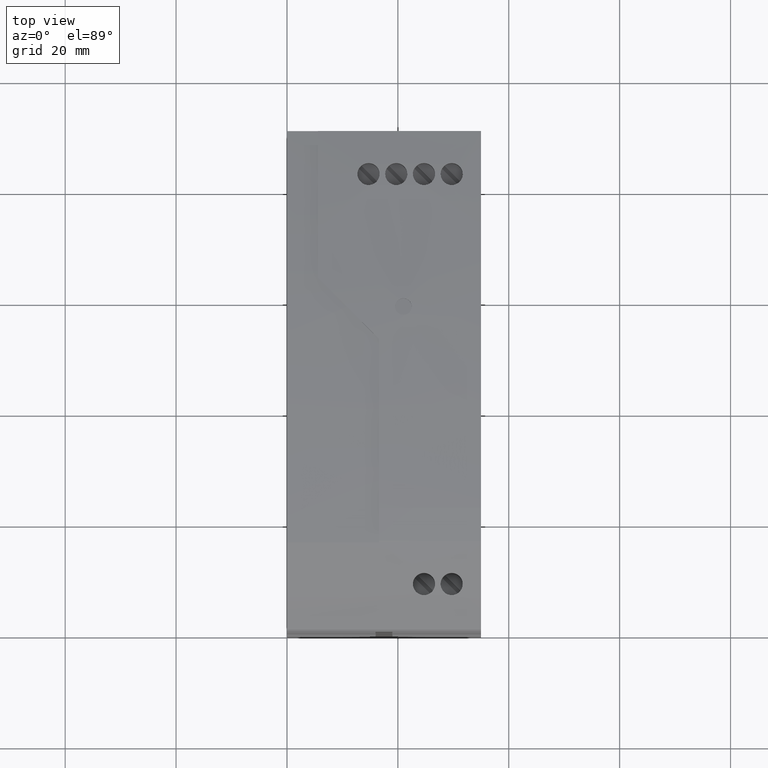
[diagram: clean part render]
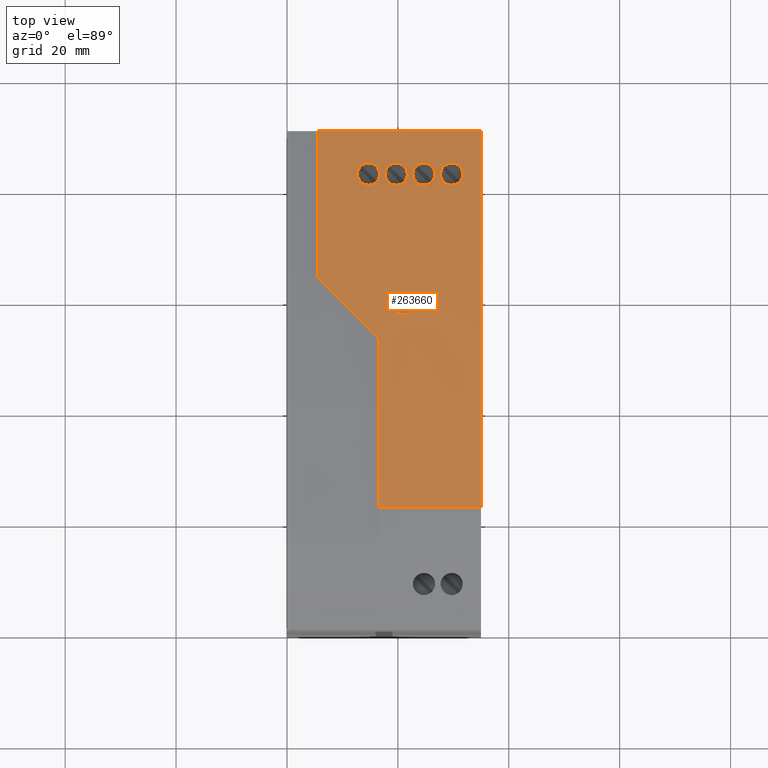
[diagram: same view with one face highlighted and labeled with its STEP entity id]
A machine part, top view. The second image highlights one B-rep face of the part: STEP entity #263660.
In plain terms, the highlighted cylindrical surface (partial cylindrical patch) has radius 350 mm, axis along (1, 0, 0).
Its self-contained STEP definition (entity closure, byte-faithful):
#33890=CARTESIAN_POINT('',(-23.0409203779481,89.8990722762113,13.5));
#33900=VERTEX_POINT('',#33890);
#33930=CARTESIAN_POINT('',(-33.8174223565983,-259.934984106395,13.5));
#33940=DIRECTION('',(0.,0.,1.));
#33950=DIRECTION('',(0.,1.,0.));
#33960=AXIS2_PLACEMENT_3D('',#33930,#33940,#33950);
#33970=CIRCLE('',#33960,350.000000000006);
#33980=CARTESIAN_POINT('',(44.998476392647,81.0753589982581,13.5));
#33990=VERTEX_POINT('',#33980);
#34000=EDGE_CURVE('',#33990,#33900,#33970,.T.);
#149330=CARTESIAN_POINT('',(13.1984817606206,86.6921034492257,1.));
#149340=CARTESIAN_POINT('',(13.0055555978401,86.7181688267425,
0.999982713787796));
#149350=CARTESIAN_POINT('',(12.6154612248136,86.7708727055403,
0.924391030368163));
#149360=CARTESIAN_POINT('',(12.1127511947706,86.8387915742188,
0.59119885713026));
#149370=CARTESIAN_POINT('',(11.7787944546882,86.8839109524259,
0.0906647365378639));
#149380=CARTESIAN_POINT('',(11.6588543533701,86.9001155147061,
-0.500019000456801));
#149390=CARTESIAN_POINT('',(11.7787704303386,86.8839141982466,
-1.09069003289234));
#149400=CARTESIAN_POINT('',(12.1127775662568,86.8387880112871,
-1.59123595549545));
#149410=CARTESIAN_POINT('',(12.6154786035389,86.7708703575796,
-1.9243891701172));
#149420=CARTESIAN_POINT('',(13.0055621510402,86.7181679413694,
-1.99998778301405));
#149430=CARTESIAN_POINT('',(13.1984826061552,86.6921033349893,
-1.99999999005424));
#149440=B_SPLINE_CURVE_WITH_KNOTS('',3,(#149330,#149340,#149350,#149360,
#149370,#149380,#149390,#149400,#149410,#149420,#149430),.UNSPECIFIED.,
.F.,.F.,(4,1,1,1,1,1,1,1,4),(0.,0.124601525288921,0.250020484171647,
0.375081460448419,0.500001300574072,0.624919263761973,0.74998345534349,
0.87540031799334,1.),.UNSPECIFIED.);
#149450=DIRECTION('',(0.133889013118048,0.990996333074081,0.));
#149460=VECTOR('',#149450,1.);
#149470=SURFACE_OF_LINEAR_EXTRUSION('',#149440,#149460);
#149520=CARTESIAN_POINT('',(13.2251086358911,86.8891792355285,
-1.99999999005424));
#149530=VERTEX_POINT('',#149520);
#149610=CARTESIAN_POINT('',(13.2251077904162,86.889179350207,1.));
#149620=VERTEX_POINT('',#149610);
#149650=CARTESIAN_POINT('',(-33.8174223565983,-259.934984106395,13.5));
#149660=DIRECTION('',(0.,0.,1.));
#149670=DIRECTION('',(0.,1.,0.));
#149680=AXIS2_PLACEMENT_3D('',#149650,#149660,#149670);
#149690=CYLINDRICAL_SURFACE('',#149680,350.000000000006);
#149700=CARTESIAN_POINT('',(13.2251077904162,86.889179350207,1.));
#149710=CARTESIAN_POINT('',(12.9994849806739,86.9197823731434,
0.999979782735081));
#149720=CARTESIAN_POINT('',(12.7738394898692,86.9501505351982,
0.948529304902941));
#149730=CARTESIAN_POINT('',(12.5699462445855,86.9774141071345,
0.849268912616509));
#149740=CARTESIAN_POINT('',(12.364352396805,87.0049050750222,
0.749180623992813));
#149750=CARTESIAN_POINT('',(12.1833022051968,87.0289237237714,
0.602926657652268));
#149760=CARTESIAN_POINT('',(12.0431106938747,87.047452781023,
0.42273368178693));
#149770=CARTESIAN_POINT('',(11.8389385588227,87.0744381323034,
0.160304207585181));
#149780=CARTESIAN_POINT('',(11.7251185274894,87.0893334418509,
-0.166774336666834));
#149790=CARTESIAN_POINT('',(11.7251090276306,87.0893346885867,
-0.500006183820192));
#149800=CARTESIAN_POINT('',(11.7250995273647,87.0893359353758,
-0.83325231306236));
#149810=CARTESIAN_POINT('',(11.838915779487,87.0744411383523,
-1.16031030334544));
#149820=CARTESIAN_POINT('',(12.043102866026,87.0474538156266,
-1.42274395292638));
#149830=CARTESIAN_POINT('',(12.183300714116,87.028923924065,
-1.60293474540652));
#149840=CARTESIAN_POINT('',(12.364349935068,87.0049054045516,
-1.74918296978898));
#149850=CARTESIAN_POINT('',(12.5699468388128,86.9774140276774,
-1.84926995077305));
#149860=CARTESIAN_POINT('',(12.7738398174735,86.9501504910371,
-1.9485274410674));
#149870=CARTESIAN_POINT('',(12.9994866830455,86.9197821427972,
-1.99998571281833));
#149880=CARTESIAN_POINT('',(13.2251086358911,86.8891792355285,
-1.99999999005424));
#149890=B_SPLINE_CURVE_WITH_KNOTS('',3,(#149700,#149710,#149720,#149730,
#149740,#149750,#149760,#149770,#149780,#149790,#149800,#149810,#149820,
#149830,#149840,#149850,#149860,#149870,#149880),.UNSPECIFIED.,.F.,.F.,(
4,3,3,3,3,3,4),(0.,0.683784518436675,1.37118459360683,2.36633691669822,
3.36148932592984,4.04888981220168,4.73267473464276),.UNSPECIFIED.);
#149900=SURFACE_CURVE('',#149890,(#149690,#149470),.CURVE_3D.);
#149910=EDGE_CURVE('',#149620,#149530,#149900,.T.);
#153800=CARTESIAN_POINT('',(13.1984817625892,86.6921034489597,
0.999999999999998));
#153810=CARTESIAN_POINT('',(13.3913884849968,86.6660406979434,
0.999970963924609));
#153820=CARTESIAN_POINT('',(13.7814001998191,86.6133479867201,
0.924155828797026));
#153830=CARTESIAN_POINT('',(14.2843524047987,86.5453963988859,
0.591676786056457));
#153840=CARTESIAN_POINT('',(14.6189250564467,86.5001938076649,
0.0909575630878443));
#153850=CARTESIAN_POINT('',(14.7389975518286,86.4839713582241,
-0.500179202060517));
#153860=CARTESIAN_POINT('',(14.6188661041923,86.5002017724362,
-1.09127931154959));
#153870=CARTESIAN_POINT('',(14.2843255024885,86.5454000335348,
-1.59191213507057));
#153880=CARTESIAN_POINT('',(13.7814075523009,86.6133469933596,
-1.92430609882742));
#153890=CARTESIAN_POINT('',(13.3913969134836,86.6660395592088,
-1.99997142864564));
#153900=CARTESIAN_POINT('',(13.1984826141505,86.6921033339091,-2.));
#153910=B_SPLINE_CURVE_WITH_KNOTS('',3,(#153800,#153810,#153820,#153830,
#153840,#153850,#153860,#153870,#153880,#153890,#153900),.UNSPECIFIED.,
.F.,.F.,(4,1,1,1,1,1,1,1,4),(0.,0.124580735199533,0.2499639478125,
0.375047362656134,0.500000013310294,0.624952655613596,0.750034170979229,
0.875416818226335,1.),.UNSPECIFIED.);
#153920=DIRECTION('',(0.133889013118048,0.990996333074081,0.));
#153930=VECTOR('',#153920,1.);
#153940=SURFACE_OF_LINEAR_EXTRUSION('',#153910,#153930);
#153980=CARTESIAN_POINT('',(13.2251077923846,86.88917934994,
0.999999999999998));
#153990=CARTESIAN_POINT('',(13.4508092628632,86.8585656576186,
0.999966025300295));
#154000=CARTESIAN_POINT('',(13.6764806633038,86.8277179364568,
0.948321683997539));
#154010=CARTESIAN_POINT('',(13.8803569800884,86.7996721458367,
0.849117271774597));
#154020=CARTESIAN_POINT('',(14.0859960689192,86.7713838634133,
0.7490551102678));
#154030=CARTESIAN_POINT('',(14.2670163062318,86.7462914177236,
0.602961095943462));
#154040=CARTESIAN_POINT('',(14.4072307221891,86.7267859742344,
0.422695102309848));
#154050=CARTESIAN_POINT('',(14.611341562577,86.6983918006714,
0.160280976039718));
#154060=CARTESIAN_POINT('',(14.725051822759,86.6824248628474,
-0.166774938922335));
#154070=CARTESIAN_POINT('',(14.7250589325744,86.6824238671441,
-0.500069294149769));
#154080=CARTESIAN_POINT('',(14.725066042118,86.6824228714789,
-0.833350905124435));
#154090=CARTESIAN_POINT('',(14.6113725600781,86.6983874598514,
-1.16043441256488));
#154100=CARTESIAN_POINT('',(14.4072785555143,86.7267793200634,
-1.4228497492662));
#154110=CARTESIAN_POINT('',(14.2670720962536,86.7462836764048,
-1.60312121433562));
#154120=CARTESIAN_POINT('',(14.0860473027592,86.7713767948303,
-1.74922088646316));
#154130=CARTESIAN_POINT('',(13.8803912524074,86.7996674312399,
-1.84924998639802));
#154140=CARTESIAN_POINT('',(13.6764909510412,86.8277165417809,
-1.9484251071261));
#154150=CARTESIAN_POINT('',(13.450811471709,86.8585653574509,
-1.99996657017576));
#154160=CARTESIAN_POINT('',(13.2251086438858,86.8891792344441,-2.));
#154170=B_SPLINE_CURVE_WITH_KNOTS('',3,(#153980,#153990,#154000,#154010,
#154020,#154030,#154040,#154050,#154060,#154070,#154080,#154090,#154100,
#154110,#154120,#154130,#154140,#154150,#154160),.UNSPECIFIED.,.F.,.F.,(
4,3,3,3,3,3,4),(0.,0.684060528390621,1.37172166931321,2.36697046026307,
3.36221858739486,4.0498820158736,4.73394187113417),.UNSPECIFIED.);
#154180=SURFACE_CURVE('',#154170,(#149690,#153940),.CURVE_3D.);
#154190=EDGE_CURVE('',#149620,#149530,#154180,.T.);
#160460=CARTESIAN_POINT('',(-23.0409203779481,89.8990722762113,1.));
#160470=DIRECTION('',(0.,0.,-1.));
#160480=VECTOR('',#160470,1.);
#160490=LINE('',#160460,#160480);
#160500=CARTESIAN_POINT('',(-23.0409203779482,89.8990722762115,-4.9));
#160510=VERTEX_POINT('',#160500);
#160520=EDGE_CURVE('',#33900,#160510,#160490,.T.);
#260180=CARTESIAN_POINT('',(44.998476392647,81.0753589982581,-15.9));
#260190=VERTEX_POINT('',#260180);
#260310=CARTESIAN_POINT('',(44.998476392647,81.0753589982581,13.5));
#260320=DIRECTION('',(0.,0.,1.));
#260330=VECTOR('',#260320,1.);
#260340=LINE('',#260310,#260330);
#260350=EDGE_CURVE('',#260190,#33990,#260340,.T.);
#260470=CARTESIAN_POINT('',(-33.8174223565983,-259.934984106395,13.5));
#260480=DIRECTION('',(0.,0.,1.));
#260490=DIRECTION('',(0.,1.,0.));
#260500=AXIS2_PLACEMENT_3D('',#260470,#260480,#260490);
#260510=CYLINDRICAL_SURFACE('',#260500,350.000000000006);
#260520=CARTESIAN_POINT('',(37.1984763926329,80.1290722762114,3.2));
#260530=DIRECTION('',(0.,-1.,0.));
#260540=DIRECTION('',(0.,0.,-1.));
#260550=AXIS2_PLACEMENT_3D('',#260520,#260530,#260540);
#260560=CYLINDRICAL_SURFACE('',#260550,1.99999999999999);
#260570=CARTESIAN_POINT('',(35.9311956553943,83.044797054859,
4.74725548408272));
#260580=CARTESIAN_POINT('',(36.020505111017,83.0266350189395,
4.82040445910868));
#260590=CARTESIAN_POINT('',(36.1163725522379,83.0071025878325,
4.88591993635139));
#260600=CARTESIAN_POINT('',(36.2167531583835,82.9866020615529,
4.94247510493988));
#260610=CARTESIAN_POINT('',(36.3172187516943,82.9660841785179,
4.99907815591965));
#260620=CARTESIAN_POINT('',(36.4216153554368,82.9447172217389,
5.04647158265835));
#260630=CARTESIAN_POINT('',(36.5289314908513,82.9226984681303,
5.08459800076789));
#260640=CARTESIAN_POINT('',(36.6364406680203,82.900640106882,
5.1227930012077));
#260650=CARTESIAN_POINT('',(36.7472511308003,82.8778510192482,
5.15174421068449));
#260660=CARTESIAN_POINT('',(36.8592254700604,82.8547640658498,
5.17101720224195));
#260670=CARTESIAN_POINT('',(36.9713202013282,82.8316522899368,
5.19031091563767));
#260680=CARTESIAN_POINT('',(37.0849014576514,82.8081761913233,
5.19999999999999));
#260690=CARTESIAN_POINT('',(37.1984763926329,82.7846420092442,
5.19999999999999));
#260700=B_SPLINE_CURVE_WITH_KNOTS('',3,(#260570,#260580,#260590,#260600,
#260610,#260620,#260630,#260640,#260650,#260660,#260670,#260680,#260690)
,.UNSPECIFIED.,.F.,.F.,(4,3,3,3,4),(0.,0.351203730232977,
0.700531232207713,1.04904605481684,1.3970827915383),.UNSPECIFIED.);
#260710=SURFACE_CURVE('',#260700,(#260510,#260560),.CURVE_3D.);
#260720=CARTESIAN_POINT('',(35.9311956553943,83.044797054859,
4.74725548408271));
#260730=VERTEX_POINT('',#260720);
#260740=CARTESIAN_POINT('',(37.1984763926329,82.7846420092442,
5.19999999999999));
#260750=VERTEX_POINT('',#260740);
#260760=EDGE_CURVE('',#260730,#260750,#260710,.T.);
#260770=ORIENTED_EDGE('',*,*,#260760,.F.);
#260780=CARTESIAN_POINT('',(37.1984763926329,82.7846420092442,
5.19999999999999));
#260790=CARTESIAN_POINT('',(37.4961463098964,82.7229609875161,
5.19999999999999));
#260800=CARTESIAN_POINT('',(37.7936485234423,82.6608865131165,
5.13270830731074));
#260810=CARTESIAN_POINT('',(38.0635206162501,82.6042545763268,
5.00324665289774));
#260820=CARTESIAN_POINT('',(38.335583336425,82.5471629422438,
4.87273412197432));
#260830=CARTESIAN_POINT('',(38.5754650410516,82.4964790795992,
4.68176677262291));
#260840=CARTESIAN_POINT('',(38.7639561588967,82.4565220569369,
4.44469799606921));
#260850=CARTESIAN_POINT('',(39.0434318315744,82.3972778022771,
4.09319625659371));
#260860=CARTESIAN_POINT('',(39.1981441028872,82.3641935945163,
3.65343345640217));
#260870=CARTESIAN_POINT('',(39.19847585385,82.3641228286451,
3.20146803653028));
#260880=CARTESIAN_POINT('',(39.1988084354584,82.3640518855886,
2.74837097534132));
#260890=CARTESIAN_POINT('',(39.044384919327,82.3970747382394,
2.30870044915064));
#260900=CARTESIAN_POINT('',(38.7651564820738,82.4562676059297,
1.95681316876768));
#260910=CARTESIAN_POINT('',(38.5776636390746,82.4960136975445,
1.72053226821447));
#260920=CARTESIAN_POINT('',(38.3363412055794,82.547002205152,
1.52801029798879));
#260930=CARTESIAN_POINT('',(38.0655730697694,82.6038238680261,
1.3977393771991));
#260940=CARTESIAN_POINT('',(37.7960228823833,82.6603899400622,
1.26805443105582));
#260950=CARTESIAN_POINT('',(37.4965129087698,82.7228850235313,
1.20000000000001));
#260960=CARTESIAN_POINT('',(37.1984763926329,82.7846420092442,
1.20000000000001));
#260970=B_SPLINE_CURVE_WITH_KNOTS('',3,(#260780,#260790,#260800,#260810,
#260820,#260830,#260840,#260850,#260860,#260870,#260880,#260890,#260900,
#260910,#260920,#260930,#260940,#260950,#260960),.UNSPECIFIED.,.F.,.F.,(
4,3,3,3,3,3,4),(0.,0.912600569074767,1.82825693375222,3.1743871375938,
4.52150659964054,5.43679212056496,6.3517101585232),.UNSPECIFIED.);
#260980=SURFACE_CURVE('',#260970,(#260510,#260560),.CURVE_3D.);
#260990=CARTESIAN_POINT('',(37.1984763926329,82.7846420092442,
1.20000000000001));
#261000=VERTEX_POINT('',#260990);
#261010=EDGE_CURVE('',#260750,#261000,#260980,.T.);
#261020=ORIENTED_EDGE('',*,*,#261010,.F.);
#261030=CARTESIAN_POINT('',(37.1984763926329,82.7846420092442,
1.20000000000001));
#261040=CARTESIAN_POINT('',(36.7938362901332,82.8684886242591,
1.20000000000001));
#261050=CARTESIAN_POINT('',(36.3934566854708,82.9506384641315,
1.32396444427632));
#261060=CARTESIAN_POINT('',(36.057286766752,83.0191309366115,
1.55753653380598));
#261070=CARTESIAN_POINT('',(35.7208176640573,83.0876843659146,
1.79131649745685));
#261080=CARTESIAN_POINT('',(35.460841564701,83.1401432992659,
2.12657977655039));
#261090=CARTESIAN_POINT('',(35.3191341403167,83.168697826273,
2.51584161288547));
#261100=CARTESIAN_POINT('',(35.1774317526602,83.1972513383623,
2.90508961363008));
#261110=CARTESIAN_POINT('',(35.1599360983357,83.2007569559795,
3.33180789833944));
#261120=CARTESIAN_POINT('',(35.2707337166888,83.1784471235667,
3.73273649710124));
#261130=CARTESIAN_POINT('',(35.3810127590693,83.1562417098518,
4.13178859399334));
#261140=CARTESIAN_POINT('',(35.6146664253619,83.1091666695354,
4.4880019864415));
#261150=CARTESIAN_POINT('',(35.9311956553943,83.044797054859,
4.74725548408271));
#261160=B_SPLINE_CURVE_WITH_KNOTS('',3,(#261030,#261040,#261050,#261060,
#261070,#261080,#261090,#261100,#261110,#261120,#261130,#261140,#261150)
,.UNSPECIFIED.,.F.,.F.,(4,3,3,3,4),(0.,1.23699307380883,2.47542169574248
,3.71371680086393,4.9513414771357),.UNSPECIFIED.);
#261170=SURFACE_CURVE('',#261160,(#260510,#260560),.CURVE_3D.);
#261180=EDGE_CURVE('',#261000,#260730,#261170,.T.);
#261190=ORIENTED_EDGE('',*,*,#261180,.F.);
#261200=EDGE_LOOP('',(#261190,#261020,#260770));
#261210=FACE_BOUND('',#261200,.T.);
#261220=CARTESIAN_POINT('',(37.1984763926329,80.1290722762114,
8.20000000000001));
#261230=DIRECTION('',(0.,-1.,0.));
#261240=DIRECTION('',(0.,0.,-1.));
#261250=AXIS2_PLACEMENT_3D('',#261220,#261230,#261240);
#261260=CYLINDRICAL_SURFACE('',#261250,1.99999999999998);
#261270=CARTESIAN_POINT('',(38.2124243590828,82.5729737312588,
6.47607728672883));
#261280=CARTESIAN_POINT('',(38.1355887191296,82.5891323612745,
6.43088538787997));
#261290=CARTESIAN_POINT('',(38.0562937115018,82.6057811145165,
6.39115178067957));
#261300=CARTESIAN_POINT('',(37.9749963317338,82.6228192186552,
6.35690022403051));
#261310=CARTESIAN_POINT('',(37.8935260593613,82.639893557199,
6.32257582566311));
#261320=CARTESIAN_POINT('',(37.8094075858307,82.6574923309597,
6.29351994353811));
#261330=CARTESIAN_POINT('',(37.7236274002445,82.6754042353678,
6.27017710159601));
#261340=CARTESIAN_POINT('',(37.6378483907851,82.6933158941868,
6.24683457970615));
#261350=CARTESIAN_POINT('',(37.550458513784,82.7115300167772,
6.22922044766729));
#261360=CARTESIAN_POINT('',(37.4625588035147,82.7298146194421,
6.21751154347301));
#261370=CARTESIAN_POINT('',(37.3746394698394,82.7481033041021,
6.2058000252931));
#261380=CARTESIAN_POINT('',(37.2863394077403,82.7664356664811,
6.20000000000003));
#261390=CARTESIAN_POINT('',(37.1984763926329,82.7846420092441,
6.20000000000003));
#261400=B_SPLINE_CURVE_WITH_KNOTS('',3,(#261270,#261280,#261290,#261300,
#261310,#261320,#261330,#261340,#261350,#261360,#261370,#261380,#261390)
,.UNSPECIFIED.,.F.,.F.,(4,3,3,3,4),(0.,0.270489618847432,
0.541740849947555,0.813763205323572,1.08423443937793),.UNSPECIFIED.);
#261410=SURFACE_CURVE('',#261400,(#260510,#261260),.CURVE_3D.);
#261420=CARTESIAN_POINT('',(38.2124243590828,82.5729737312588,
6.47607728672882));
#261430=VERTEX_POINT('',#261420);
#261440=CARTESIAN_POINT('',(37.1984763926329,82.7846420092441,
6.20000000000003));
#261450=VERTEX_POINT('',#261440);
#261460=EDGE_CURVE('',#261430,#261450,#261410,.T.);
#261470=ORIENTED_EDGE('',*,*,#261460,.F.);
#261480=CARTESIAN_POINT('',(37.1984763926329,82.7846420092441,
6.20000000000003));
#261490=CARTESIAN_POINT('',(36.9022198719071,82.8460301570958,
6.20000000000003));
#261500=CARTESIAN_POINT('',(36.6042504839533,82.9073461208712,
6.26716855065541));
#261510=CARTESIAN_POINT('',(36.3352298575279,82.9623844856203,
6.39589207095885));
#261520=CARTESIAN_POINT('',(36.0650497374902,83.0176600687313,
6.52517039667453));
#261530=CARTESIAN_POINT('',(35.8239966277052,83.0666331591207,
6.71635818704834));
#261540=CARTESIAN_POINT('',(35.6362725728311,83.1046408069003,
6.9511928790255));
#261550=CARTESIAN_POINT('',(35.3538925331617,83.1618130275565,
7.30443812338566));
#261560=CARTESIAN_POINT('',(35.1982375546827,83.1930367357913,
7.74661272875231));
#261570=CARTESIAN_POINT('',(35.198476669483,83.1929886408406,
8.20105234999771));
#261580=CARTESIAN_POINT('',(35.1987161285619,83.1929404766427,
8.65614627554206));
#261590=CARTESIAN_POINT('',(35.3552497417879,83.1615397614488,
9.09828694215437));
#261600=CARTESIAN_POINT('',(35.6380514689188,83.1042806369831,
9.45102919928023));
#261610=CARTESIAN_POINT('',(35.826378163759,83.0661499587533,
9.68593152498014));
#261620=CARTESIAN_POINT('',(36.0669450159339,83.0172746463778,
9.87625796497481));
#261630=CARTESIAN_POINT('',(36.3380715378944,82.9618030999367,
10.0054648946857));
#261640=CARTESIAN_POINT('',(36.6072805827466,82.9067238626643,
10.1337580394664));
#261650=CARTESIAN_POINT('',(36.9024232087966,82.8459880230864,10.2));
#261660=CARTESIAN_POINT('',(37.1984763926329,82.7846420092442,10.2));
#261670=B_SPLINE_CURVE_WITH_KNOTS('',3,(#261480,#261490,#261500,#261510,
#261520,#261530,#261540,#261550,#261560,#261570,#261580,#261590,#261600,
#261610,#261620,#261630,#261640,#261650,#261660),.UNSPECIFIED.,.F.,.F.,(
4,3,3,3,3,3,4),(0.,0.910132354506706,1.82170133804236,3.17524869701436,
4.52956044522851,5.44146259901861,6.34839260190238),.UNSPECIFIED.);
#261680=SURFACE_CURVE('',#261670,(#260510,#261260),.CURVE_3D.);
#261690=CARTESIAN_POINT('',(37.1984763926329,82.7846420092442,10.2));
#261700=VERTEX_POINT('',#261690);
#261710=EDGE_CURVE('',#261450,#261700,#261680,.T.);
#261720=ORIENTED_EDGE('',*,*,#261710,.F.);
#261730=CARTESIAN_POINT('',(37.1984763926329,82.7846420092442,10.2));
#261740=CARTESIAN_POINT('',(37.6285092881298,82.6955336820918,10.2));
#261750=CARTESIAN_POINT('',(38.0527681689586,82.6066964581028,
10.0603969327784));
#261760=CARTESIAN_POINT('',(38.4017581050258,82.5331019592352,
9.79753344898339));
#261770=CARTESIAN_POINT('',(38.7491663464945,82.4598410058637,
9.53586131688509));
#261780=CARTESIAN_POINT('',(39.0066059586168,82.4050158494154,
9.16197340687988));
#261790=CARTESIAN_POINT('',(39.1250653781451,82.3797738037356,
8.73689373334297));
#261800=CARTESIAN_POINT('',(39.2438764281082,82.3544568305277,
8.3105522694731));
#261810=CARTESIAN_POINT('',(39.2171198933582,82.3601874076881,
7.85470305692881));
#261820=CARTESIAN_POINT('',(39.0511228788721,82.3955215679762,
7.44654064673309));
#261830=CARTESIAN_POINT('',(38.8847998943157,82.4309251143239,
7.03757672375153));
#261840=CARTESIAN_POINT('',(38.5878766021937,82.4940156606461,
6.69690449404546));
#261850=CARTESIAN_POINT('',(38.2124243590828,82.5729737312588,
6.47607728672883));
#261860=B_SPLINE_CURVE_WITH_KNOTS('',3,(#261730,#261740,#261750,#261760,
#261770,#261780,#261790,#261800,#261810,#261820,#261830,#261840,#261850)
,.UNSPECIFIED.,.F.,.F.,(4,3,3,3,4),(0.,1.31549882530681,2.63204674500431
,3.9492304939424,5.26750867932419),.UNSPECIFIED.);
#261870=SURFACE_CURVE('',#261860,(#260510,#261260),.CURVE_3D.);
#261880=EDGE_CURVE('',#261700,#261430,#261870,.T.);
#261890=ORIENTED_EDGE('',*,*,#261880,.F.);
#261900=EDGE_LOOP('',(#261890,#261720,#261470));
#261910=FACE_BOUND('',#261900,.T.);
#261920=CARTESIAN_POINT('',(37.1984763926329,80.1290722762114,
-6.79999999999999));
#261930=DIRECTION('',(0.,1.,0.));
#261940=DIRECTION('',(0.,0.,-1.));
#261950=AXIS2_PLACEMENT_3D('',#261920,#261930,#261940);
#261960=CYLINDRICAL_SURFACE('',#261950,1.99999999999997);
#261970=CARTESIAN_POINT('',(38.7457318767154,82.4603847987887,
-8.06728073723879));
#261980=CARTESIAN_POINT('',(38.6512353896549,82.4804112471224,
-8.18265391662557));
#261990=CARTESIAN_POINT('',(38.5453351914092,82.5028142018329,
-8.28597362270283));
#262000=CARTESIAN_POINT('',(38.4279596874857,82.5275755600726,
-8.37745707633449));
#262010=CARTESIAN_POINT('',(38.3107094020329,82.5523105024136,
-8.46884293363841));
#262020=CARTESIAN_POINT('',(38.1831498237355,82.5791560347972,
-8.54704455471144));
#262030=CARTESIAN_POINT('',(38.0497065265993,82.607153135274,
-8.60980862497321));
#262040=CARTESIAN_POINT('',(37.9166101811472,82.6350774434759,
-8.67240950907016));
#262050=CARTESIAN_POINT('',(37.7770728890483,82.6642710680225,
-8.72009116244791));
#262060=CARTESIAN_POINT('',(37.6338811882307,82.6941320261212,
-8.75203039524755));
#262070=CARTESIAN_POINT('',(37.49094863535,82.723938941942,
-8.78391182451361));
#262080=CARTESIAN_POINT('',(37.344712308103,82.754340053432,
-8.79999999999997));
#262090=CARTESIAN_POINT('',(37.1984763926329,82.7846420092442,
-8.79999999999997));
#262100=B_SPLINE_CURVE_WITH_KNOTS('',3,(#261970,#261980,#261990,#262000,
#262010,#262020,#262030,#262040,#262050,#262060,#262070,#262080,#262090)
,.UNSPECIFIED.,.F.,.F.,(4,3,3,3,4),(0.,0.450039171831815,
0.901944705588508,1.35081921134346,1.79897413478678),.UNSPECIFIED.);
#262110=SURFACE_CURVE('',#262100,(#260510,#261960),.CURVE_3D.);
#262120=CARTESIAN_POINT('',(38.7457318767154,82.4603847987887,
-8.0672807372388));
#262130=VERTEX_POINT('',#262120);
#262140=CARTESIAN_POINT('',(37.1984763926329,82.7846420092442,
-8.79999999999997));
#262150=VERTEX_POINT('',#262140);
#262160=EDGE_CURVE('',#262130,#262150,#262110,.T.);
#262170=ORIENTED_EDGE('',*,*,#262160,.F.);
#262180=CARTESIAN_POINT('',(37.1984763926329,82.7846420092442,
-8.79999999999997));
#262190=CARTESIAN_POINT('',(36.9014003251217,82.8461999776929,
-8.79999999999997));
#262200=CARTESIAN_POINT('',(36.6042573201053,82.9073452104731,
-8.73294419821409));
#262210=CARTESIAN_POINT('',(36.3346332719541,82.9625065392687,
-8.60382234792015));
#262220=CARTESIAN_POINT('',(36.0627982445312,83.0181202036605,
-8.47364166872545));
#262230=CARTESIAN_POINT('',(35.8229653726179,83.066842985684,
-8.2830528043782));
#262240=CARTESIAN_POINT('',(35.6344580938983,83.1050081713195,
-8.04653389894674));
#262250=CARTESIAN_POINT('',(35.3536460329602,83.1618613841354,
-7.69420075968457));
#262260=CARTESIAN_POINT('',(35.1984763515742,83.192988704782,
-7.25308581632029));
#262270=CARTESIAN_POINT('',(35.1984763926329,83.1929886965235,
-6.79999981875963));
#262280=CARTESIAN_POINT('',(35.1984764337913,83.192988688245,
-6.34581468650798));
#262290=CARTESIAN_POINT('',(35.3539957063796,83.1617911009571,
-5.90501259293546));
#262300=CARTESIAN_POINT('',(35.6350586850062,83.1048865750902,
-5.55271291537223));
#262310=CARTESIAN_POINT('',(35.822936613345,83.0668484653213,
-5.31721646579196));
#262320=CARTESIAN_POINT('',(36.0644210408154,83.0177886621976,
-5.12547800689867));
#262330=CARTESIAN_POINT('',(36.3351930724812,82.9623920113936,
-4.99590967267493));
#262340=CARTESIAN_POINT('',(36.6048169033497,82.9072302684501,
-4.86689076914297));
#262350=CARTESIAN_POINT('',(36.9019295645245,82.846090312506,
-4.80000000000001));
#262360=CARTESIAN_POINT('',(37.1984763926329,82.7846420092442,
-4.80000000000001));
#262370=B_SPLINE_CURVE_WITH_KNOTS('',3,(#262180,#262190,#262200,#262210,
#262220,#262230,#262240,#262250,#262260,#262270,#262280,#262290,#262300,
#262310,#262320,#262330,#262340,#262350,#262360),.UNSPECIFIED.,.F.,.F.,(
4,3,3,3,3,3,4),(0.,0.910804955498033,1.82463305496482,3.17419705058937,
4.52473154079719,5.43821978694617,6.34839361058264),.UNSPECIFIED.);
#262380=SURFACE_CURVE('',#262370,(#260510,#261960),.CURVE_3D.);
#262390=CARTESIAN_POINT('',(37.1984763926329,82.7846420092442,
-4.80000000000002));
#262400=VERTEX_POINT('',#262390);
#262410=EDGE_CURVE('',#262150,#262400,#262380,.T.);
#262420=ORIENTED_EDGE('',*,*,#262410,.F.);
#262430=CARTESIAN_POINT('',(37.1984763926329,82.7846420092442,
-4.80000000000001));
#262440=CARTESIAN_POINT('',(37.5697089202913,82.7077178718803,
-4.80000000000001));
#262450=CARTESIAN_POINT('',(37.9375626706278,82.6308172601852,
-4.90398361863895));
#262460=CARTESIAN_POINT('',(38.2563748472113,82.5637279446559,
-5.10269305669212));
#262470=CARTESIAN_POINT('',(38.5749052394436,82.4966979264829,
-5.30122686403167));
#262480=CARTESIAN_POINT('',(38.8344595556467,82.4416106213025,
-5.588279362704));
#262490=CARTESIAN_POINT('',(38.9997665402665,82.4064492626362,
-5.9308890726507));
#262500=CARTESIAN_POINT('',(39.1646597460696,82.3713759161336,
-6.27264119850492));
#262510=CARTESIAN_POINT('',(39.2294146424913,82.3575248970655,
-6.65902948252648));
#262520=CARTESIAN_POINT('',(39.1844322012879,82.3671181820861,
-7.03659992829531));
#262530=CARTESIAN_POINT('',(39.1391997371706,82.3767647888253,
-7.41626899878334));
#262540=CARTESIAN_POINT('',(38.9859817686959,82.409469127756,
-7.77395349569396));
#262550=CARTESIAN_POINT('',(38.7457318767154,82.4603847987887,
-8.06728073723879));
#262560=B_SPLINE_CURVE_WITH_KNOTS('',3,(#262430,#262440,#262450,#262460,
#262470,#262480,#262490,#262500,#262510,#262520,#262530,#262540,#262550)
,.UNSPECIFIED.,.F.,.F.,(4,3,3,3,4),(0.,1.13645894664346,2.27549680070427
,3.41306164092072,4.55277941214885),.UNSPECIFIED.);
#262570=SURFACE_CURVE('',#262560,(#260510,#261960),.CURVE_3D.);
#262580=EDGE_CURVE('',#262400,#262130,#262570,.T.);
#262590=ORIENTED_EDGE('',*,*,#262580,.F.);
#262600=EDGE_LOOP('',(#262590,#262420,#262170));
#262610=FACE_BOUND('',#262600,.T.);
#262620=CARTESIAN_POINT('',(37.1984763926329,80.1290722762114,
-1.79999999999999));
#262630=DIRECTION('',(0.,1.,0.));
#262640=DIRECTION('',(0.,0.,-1.));
#262650=AXIS2_PLACEMENT_3D('',#262620,#262630,#262640);
#262660=CYLINDRICAL_SURFACE('',#262650,1.99999999999997);
#262670=CARTESIAN_POINT('',(38.2124243590854,82.5729737312582,
-3.52392271326974));
#262680=CARTESIAN_POINT('',(38.1352382801497,82.5892060590249,
-3.5693207274457));
#262690=CARTESIAN_POINT('',(38.0552580462364,82.6059985203877,
-3.6093586719138));
#262700=CARTESIAN_POINT('',(37.9735630408229,82.6231196010955,
-3.64370298253203));
#262710=CARTESIAN_POINT('',(37.8919669492766,82.6402199521112,
-3.67800571008694));
#262720=CARTESIAN_POINT('',(37.8079508744465,82.6577968135585,
-3.70693203991841));
#262730=CARTESIAN_POINT('',(37.7224510633884,82.6756498661319,
-3.73014262281486));
#262740=CARTESIAN_POINT('',(37.6369199639447,82.6935094519735,
-3.75336169955076));
#262750=CARTESIAN_POINT('',(37.5501897334605,82.7115859157162,
-3.77081335920343));
#262760=CARTESIAN_POINT('',(37.4626031985502,82.7298053845329,
-3.78248254226759));
#262770=CARTESIAN_POINT('',(37.3750243287948,82.7480232588687,
-3.79415070410062));
#262780=CARTESIAN_POINT('',(37.2867685544083,82.7663467417917,
-3.79999999999996));
#262790=CARTESIAN_POINT('',(37.1984763926329,82.7846420092442,
-3.79999999999996));
#262800=B_SPLINE_CURVE_WITH_KNOTS('',3,(#262670,#262680,#262690,#262700,
#262710,#262720,#262730,#262740,#262750,#262760,#262770,#262780,#262790)
,.UNSPECIFIED.,.F.,.F.,(4,3,3,3,4),(0.,0.272073415459352,
0.542984364007279,0.813717475808223,1.08423443930886),.UNSPECIFIED.);
#262810=SURFACE_CURVE('',#262800,(#260510,#262660),.CURVE_3D.);
#262820=CARTESIAN_POINT('',(38.2124243590853,82.5729737312582,
-3.52392271326977));
#262830=VERTEX_POINT('',#262820);
#262840=CARTESIAN_POINT('',(37.1984763926329,82.7846420092442,
-3.79999999999996));
#262850=VERTEX_POINT('',#262840);
#262860=EDGE_CURVE('',#262830,#262850,#262810,.T.);
#262870=ORIENTED_EDGE('',*,*,#262860,.F.);
#262880=CARTESIAN_POINT('',(37.1984763926329,82.7846420092442,
-3.79999999999996));
#262890=CARTESIAN_POINT('',(36.9014003252164,82.8461999776733,
-3.79999999999996));
#262900=CARTESIAN_POINT('',(36.6042573200223,82.9073452104901,
-3.7329441981743));
#262910=CARTESIAN_POINT('',(36.3346332719542,82.9625065392687,
-3.60382234792016));
#262920=CARTESIAN_POINT('',(36.0627982444289,83.0181202036814,
-3.47364166867644));
#262930=CARTESIAN_POINT('',(35.8229653727816,83.0668429856509,
-3.28305280458348));
#262940=CARTESIAN_POINT('',(35.6344580938984,83.1050081713195,
-3.04653389894678));
#262950=CARTESIAN_POINT('',(35.3536460329833,83.1618613841308,
-2.69420075971348));
#262960=CARTESIAN_POINT('',(35.1984763515743,83.1929887047819,
-2.25308581631499));
#262970=CARTESIAN_POINT('',(35.198476392633,83.1929886965235,
-1.79999981875973));
#262980=CARTESIAN_POINT('',(35.1984764337913,83.192988688245,
-1.34581468669935));
#262990=CARTESIAN_POINT('',(35.353995706947,83.1617911008422,
-0.905012592224351));
#263000=CARTESIAN_POINT('',(35.6350586850062,83.1048865750902,
-0.552712915372347));
#263010=CARTESIAN_POINT('',(35.8229366132385,83.0668484653429,
-0.317216465925566));
#263020=CARTESIAN_POINT('',(36.0644210409188,83.0177886621765,
-0.125478006849273));
#263030=CARTESIAN_POINT('',(36.3351930724811,82.9623920113937,
0.00409032732499315));
#263040=CARTESIAN_POINT('',(36.604816903113,82.9072302684985,
0.13310923074379));
#263050=CARTESIAN_POINT('',(36.9019295645191,82.8460903125071,
0.199999999999976));
#263060=CARTESIAN_POINT('',(37.1984763926329,82.7846420092441,
0.199999999999976));
#263070=B_SPLINE_CURVE_WITH_KNOTS('',3,(#262880,#262890,#262900,#262910,
#262920,#262930,#262940,#262950,#262960,#262970,#262980,#262990,#263000,
#263010,#263020,#263030,#263040,#263050,#263060),.UNSPECIFIED.,.F.,.F.,(
4,3,3,3,3,3,4),(0.,0.910804955497986,1.82463305496476,3.17419705058926,
4.52473154079703,5.43821978694598,6.34839361058263),.UNSPECIFIED.);
#263080=SURFACE_CURVE('',#263070,(#260510,#262660),.CURVE_3D.);
#263090=CARTESIAN_POINT('',(37.1984763926329,82.7846420092441,
0.199999999999976));
#263100=VERTEX_POINT('',#263090);
#263110=EDGE_CURVE('',#262850,#263100,#263080,.T.);
#263120=ORIENTED_EDGE('',*,*,#263110,.F.);
#263130=CARTESIAN_POINT('',(37.1984763926329,82.7846420092441,
0.199999999999976));
#263140=CARTESIAN_POINT('',(37.6286210299632,82.6955105277519,
0.199999999999976));
#263150=CARTESIAN_POINT('',(38.0529176889921,82.606665067189,
0.0603292426018591));
#263160=CARTESIAN_POINT('',(38.4018893488432,82.5330742827003,
-0.202565413913527));
#263170=CARTESIAN_POINT('',(38.7493349864467,82.4598053042128,
-0.464310455314658));
#263180=CARTESIAN_POINT('',(39.0067492969735,82.4049853329636,
-0.838312714498924));
#263190=CARTESIAN_POINT('',(39.1251399336442,82.3797579169929,
-1.263373873411));
#263200=CARTESIAN_POINT('',(39.2438443451951,82.3544636399118,
-1.68956158690547));
#263210=CARTESIAN_POINT('',(39.2173519710108,82.3601380849006,
-2.14496288097889));
#263220=CARTESIAN_POINT('',(39.050970641729,82.3955539731754,
-2.55383357385167));
#263230=CARTESIAN_POINT('',(38.8847825954502,82.4309287192784,
-2.96222928701573));
#263240=CARTESIAN_POINT('',(38.5878118766212,82.494029272514,
-3.30313357515626));
#263250=CARTESIAN_POINT('',(38.2124243590854,82.5729737312582,
-3.52392271326974));
#263260=B_SPLINE_CURVE_WITH_KNOTS('',3,(#263130,#263140,#263150,#263160,
#263170,#263180,#263190,#263200,#263210,#263220,#263230,#263240,#263250)
,.UNSPECIFIED.,.F.,.F.,(4,3,3,3,4),(0.,1.31566547241428,2.63232500080506
,3.94963577593779,5.2675086750602),.UNSPECIFIED.);
#263270=SURFACE_CURVE('',#263260,(#260510,#262660),.CURVE_3D.);
#263280=EDGE_CURVE('',#263100,#262830,#263270,.T.);
#263290=ORIENTED_EDGE('',*,*,#263280,.F.);
#263300=EDGE_LOOP('',(#263290,#263120,#262870));
#263310=FACE_BOUND('',#263300,.T.);
#263320=ORIENTED_EDGE('',*,*,#34000,.F.);
#263330=ORIENTED_EDGE('',*,*,#160520,.F.);
#263340=CARTESIAN_POINT('',(-33.8174223565983,-259.934984106395,-4.9));
#263350=DIRECTION('',(0.,0.,1.));
#263360=DIRECTION('',(0.,1.,0.));
#263370=AXIS2_PLACEMENT_3D('',#263340,#263350,#263360);
#263380=CIRCLE('',#263370,350.000000000006);
#263390=CARTESIAN_POINT('',(7.39847639264693,87.6297576185051,-4.9));
#263400=VERTEX_POINT('',#263390);
#263410=EDGE_CURVE('',#263400,#160510,#263380,.T.);
#263420=ORIENTED_EDGE('',*,*,#263410,.T.);
#263430=CARTESIAN_POINT('',(-33.8174223565983,-259.934984106395,
36.3158987492451));
#263440=DIRECTION('',(-0.707106781186548,0.,-0.707106781186548));
#263450=DIRECTION('',(0.707106781186548,0.,-0.707106781186548));
#263460=AXIS2_PLACEMENT_3D('',#263430,#263440,#263450);
#263470=ELLIPSE('',#263460,494.974746830592,350.000000000006);
#263480=CARTESIAN_POINT('',(18.3984763926468,86.1480982854103,-15.9));
#263490=VERTEX_POINT('',#263480);
#263500=EDGE_CURVE('',#263400,#263490,#263470,.T.);
#263510=ORIENTED_EDGE('',*,*,#263500,.F.);
#263520=CARTESIAN_POINT('',(-33.8174223565983,-259.934984106395,-15.9));
#263530=DIRECTION('',(0.,0.,1.));
#263540=DIRECTION('',(0.,1.,0.));
#263550=AXIS2_PLACEMENT_3D('',#263520,#263530,#263540);
#263560=CIRCLE('',#263550,350.000000000006);
#263570=EDGE_CURVE('',#260190,#263490,#263560,.T.);
#263580=ORIENTED_EDGE('',*,*,#263570,.T.);
#263590=ORIENTED_EDGE('',*,*,#260350,.F.);
#263600=EDGE_LOOP('',(#263590,#263580,#263510,#263420,#263330,#263320));
#263610=FACE_OUTER_BOUND('',#263600,.T.);
#263620=ORIENTED_EDGE('',*,*,#149910,.T.);
#263630=ORIENTED_EDGE('',*,*,#154190,.F.);
#263640=EDGE_LOOP('',(#263630,#263620));
#263650=FACE_BOUND('',#263640,.T.);
#263660=ADVANCED_FACE('',(#261210,#261910,#262610,#263310,#263610,
#263650),#260510,.T.);